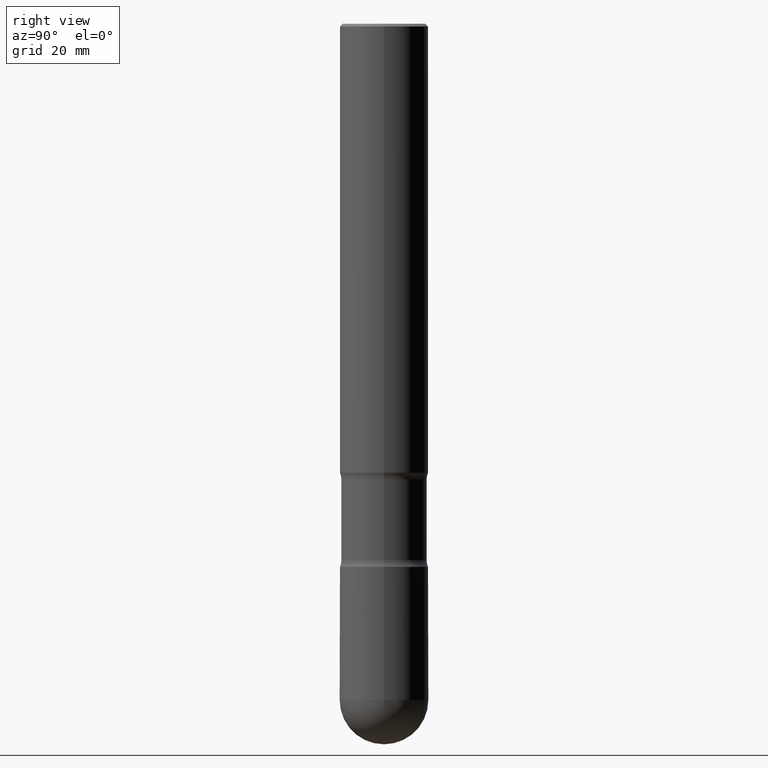
[diagram: clean part render]
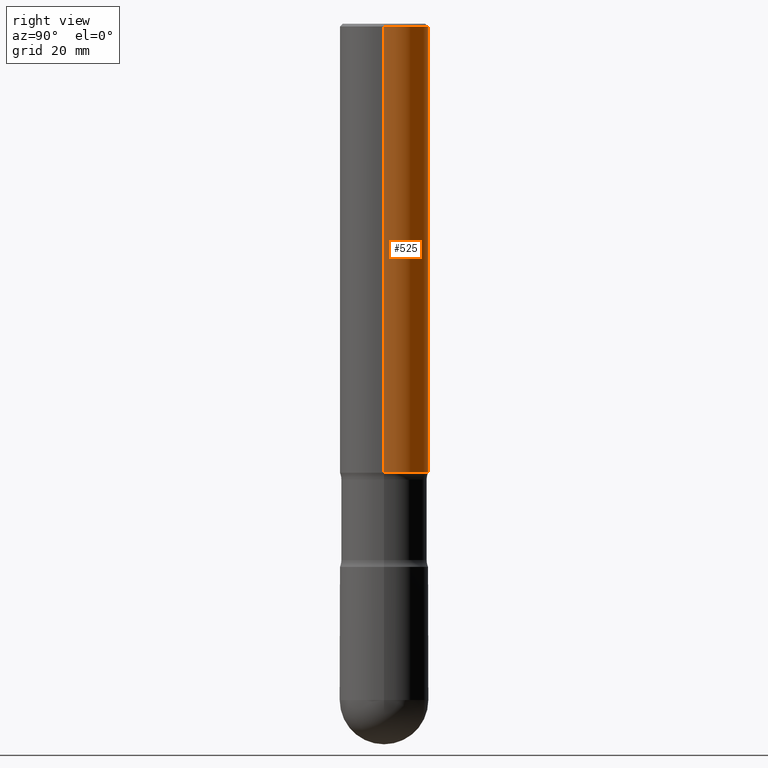
[diagram: same view with one face highlighted and labeled with its STEP entity id]
A machine part, right view. The second image highlights one B-rep face of the part: STEP entity #525.
In plain terms, the highlighted cylindrical surface (partial cylindrical patch) has radius 7.9997 mm, axis along (0, -0, -1).
Its self-contained STEP definition (entity closure, byte-faithful):
#17 = DIRECTION ( 'NONE',  ( 2.445468806185136597E-29, -3.491481338843145583E-15, -1.000000000000000000 ) ) ;
#20 = CARTESIAN_POINT ( 'NONE',  ( 9.435352294904112142E-29, -1.347118244965850850E-14, -3.858300000000000285 ) ) ;
#33 = CARTESIAN_POINT ( 'NONE',  ( 0.3149500000000000077, -7.762795652571971957E-15, -3.189000000000001389 ) ) ;
#81 = VERTEX_POINT ( 'NONE', #376 ) ;
#87 = ORIENTED_EDGE ( 'NONE', *, *, #225, .T. ) ;
#91 = CARTESIAN_POINT ( 'NONE',  ( 7.798600022924404670E-29, -1.113433398957079626E-14, -3.189000000000001389 ) ) ;
#120 = DIRECTION ( 'NONE',  ( -1.000000000000000000, 6.982962677686266711E-15, 0.000000000000000000 ) ) ;
#131 = DIRECTION ( 'NONE',  ( 2.445468806185136597E-29, -3.491481338843145583E-15, -1.000000000000000000 ) ) ;
#174 = CARTESIAN_POINT ( 'NONE',  ( 0.3149499999999996747, -2.230543471175005872E-15, -0.02000000000000033348 ) ) ;
#186 = DIRECTION ( 'NONE',  ( -1.000000000000000000, 6.982962677686265922E-15, 0.000000000000000000 ) ) ;
#192 = EDGE_CURVE ( 'NONE', #363, #81, #246, .T. ) ;
#203 = CARTESIAN_POINT ( 'NONE',  ( 0.3149499999999998967, -1.563189629405665068E-14, -3.858300000000000285 ) ) ;
#213 = CARTESIAN_POINT ( 'NONE',  ( 4.890937612370354609E-31, -6.982962677686407473E-17, -0.02000000000000033348 ) ) ;
#214 = EDGE_LOOP ( 'NONE', ( #223, #87, #269, #406 ) ) ;
#223 = ORIENTED_EDGE ( 'NONE', *, *, #459, .T. ) ;
#225 = EDGE_CURVE ( 'NONE', #351, #481, #294, .T. ) ;
#246 = LINE ( 'NONE', #418, #540 ) ;
#256 = AXIS2_PLACEMENT_3D ( 'NONE', #20, #17, #186 ) ;
#269 = ORIENTED_EDGE ( 'NONE', *, *, #495, .F. ) ;
#271 = FACE_OUTER_BOUND ( 'NONE', #214, .T. ) ;
#288 = AXIS2_PLACEMENT_3D ( 'NONE', #213, #561, #120 ) ;
#292 = DIRECTION ( 'NONE',  ( 2.445468806185136877E-29, -3.491481338843145188E-15, -1.000000000000000000 ) ) ;
#294 = LINE ( 'NONE', #203, #508 ) ;
#304 = DIRECTION ( 'NONE',  ( -1.000000000000000000, 6.982962677686269866E-15, 0.000000000000000000 ) ) ;
#310 = CIRCLE ( 'NONE', #565, 0.3149500000000000077 ) ;
#348 = CYLINDRICAL_SURFACE ( 'NONE', #256, 0.3149499999999998967 ) ;
#351 = VERTEX_POINT ( 'NONE', #174 ) ;
#353 = CARTESIAN_POINT ( 'NONE',  ( -0.3149499999999996747, 2.129454468560423417E-15, -0.02000000000000033348 ) ) ;
#363 = VERTEX_POINT ( 'NONE', #353 ) ;
#367 = DIRECTION ( 'NONE',  ( 2.445468806185136877E-29, -3.491481338843145188E-15, -1.000000000000000000 ) ) ;
#376 = CARTESIAN_POINT ( 'NONE',  ( -0.3149500000000000077, -8.935049894233506386E-15, -3.189000000000001389 ) ) ;
#406 = ORIENTED_EDGE ( 'NONE', *, *, #192, .F. ) ;
#418 = CARTESIAN_POINT ( 'NONE',  ( -0.3149499999999998967, -1.127189835432122020E-14, -3.858300000000000285 ) ) ;
#459 = EDGE_CURVE ( 'NONE', #363, #351, #494, .T. ) ;
#481 = VERTEX_POINT ( 'NONE', #33 ) ;
#494 = CIRCLE ( 'NONE', #288, 0.3149499999999996747 ) ;
#495 = EDGE_CURVE ( 'NONE', #81, #481, #310, .T. ) ;
#508 = VECTOR ( 'NONE', #292, 39.37007874015748143 ) ;
#525 = ADVANCED_FACE ( 'NONE', ( #271 ), #348, .T. ) ;
#540 = VECTOR ( 'NONE', #367, 39.37007874015748143 ) ;
#561 = DIRECTION ( 'NONE',  ( 2.445468806185136597E-29, -3.491481338843145583E-15, -1.000000000000000000 ) ) ;
#565 = AXIS2_PLACEMENT_3D ( 'NONE', #91, #131, #304 ) ;